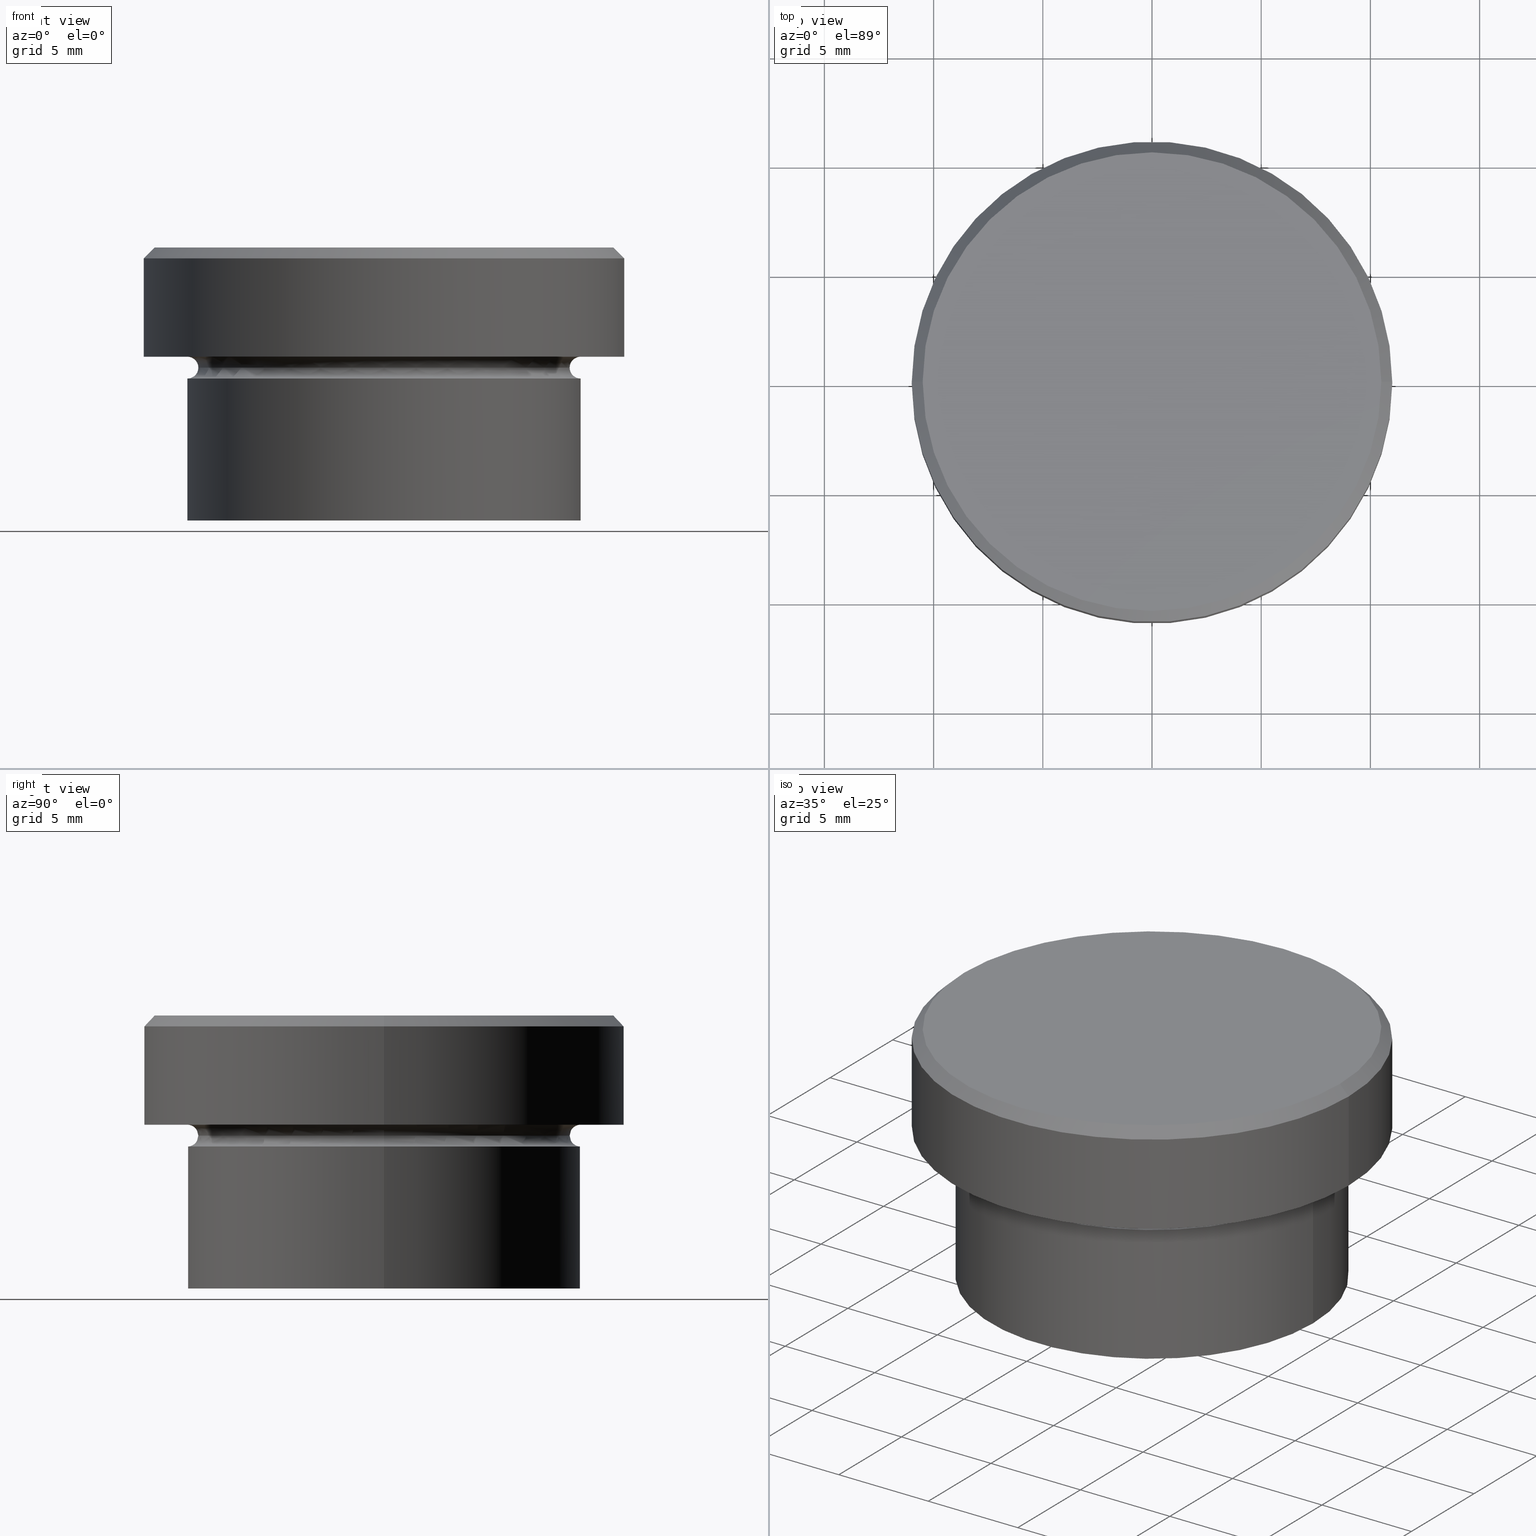
[diagram: canonical four-view strip — front | top / right | iso, engineering-drawing reading convention]
A machine part, canonical four-view strip (front | top / right | iso — engineering-drawing reading convention). The complete STEP part file that produces these views, byte-faithful:
ISO-10303-21;
HEADER;
FILE_DESCRIPTION (( 'STEP AP203' ),
    '1' );
FILE_NAME ('80bb.STEP',
    '2024-01-02T22:03:41',
    ( '' ),
    ( '' ),
    'SwSTEP 2.0',
    'SolidWorks 2019',
    '' );
FILE_SCHEMA (( 'CONFIG_CONTROL_DESIGN' ));
ENDSEC;

DATA;
#1 = PRODUCT ( '80bb', '80bb', '', ( #285 ) ) ;
#2 = AXIS2_PLACEMENT_3D ( 'NONE', #45, #10, #110 ) ;
#3 = UNCERTAINTY_MEASURE_WITH_UNIT (LENGTH_MEASURE( 1.000000000000000082E-05 ), #239, 'distance_accuracy_value', 'NONE');
#4 = DATE_AND_TIME ( #289, #28 ) ;
#5 = EDGE_CURVE ( 'NONE', #256, #281, #138, .T. ) ;
#6 = ORIENTED_EDGE ( 'NONE', *, *, #29, .F. ) ;
#7 = CARTESIAN_POINT ( 'NONE',  ( -10.50000000000000533, 0.000000000000000000, 0.000000000000000000 ) ) ;
#8 = DIRECTION ( 'NONE',  ( -1.000000000000000000, 0.000000000000000000, 0.000000000000000000 ) ) ;
#9 = EDGE_LOOP ( 'NONE', ( #50, #408, #142, #325 ) ) ;
#10 = DIRECTION ( 'NONE',  ( -0.000000000000000000, -1.000000000000000000, -0.000000000000000000 ) ) ;
#11 = AXIS2_PLACEMENT_3D ( 'NONE', #336, #331, #118 ) ;
#12 = APPROVAL_PERSON_ORGANIZATION ( #51, #301, #218 ) ;
#13 = CARTESIAN_POINT ( 'NONE',  ( 0.000000000000000000, 0.000000000000000000, -5.000000000000000000 ) ) ;
#14 = CARTESIAN_POINT ( 'NONE',  ( -9.000000000000000000, 1.102182119232617714E-15, -6.000000000000000000 ) ) ;
#15 = DIRECTION ( 'NONE',  ( 0.000000000000000000, 0.000000000000000000, -1.000000000000000000 ) ) ;
#16 = DIRECTION ( 'NONE',  ( 0.000000000000000000, -0.000000000000000000, 1.000000000000000000 ) ) ;
#17 = DIRECTION ( 'NONE',  ( -0.000000000000000000, -0.000000000000000000, 1.000000000000000000 ) ) ;
#18 = APPROVAL ( #97, 'NEUR�EN�' ) ;
#19 = CARTESIAN_POINT ( 'NONE',  ( -9.000000000000000000, 0.000000000000000000, -4.999999999999999112 ) ) ;
#20 = CARTESIAN_POINT ( 'NONE',  ( 0.000000000000000000, 0.000000000000000000, -0.4999999999999968914 ) ) ;
#21 = EDGE_CURVE ( 'NONE', #281, #256, #268, .T. ) ;
#22 = PERSON_AND_ORGANIZATION ( #394, #390 ) ;
#23 = ORIENTED_EDGE ( 'NONE', *, *, #358, .T. ) ;
#24 = DIRECTION ( 'NONE',  ( -1.224646799147353207E-16, 1.000000000000000000, 0.000000000000000000 ) ) ;
#25 = DATE_TIME_ROLE ( 'creation_date' ) ;
#26 = AXIS2_PLACEMENT_3D ( 'NONE', #237, #75, #79 ) ;
#27 = DIRECTION ( 'NONE',  ( -1.000000000000000000, -1.224646799147353454E-16, 0.000000000000000000 ) ) ;
#28 = LOCAL_TIME ( 23, 3, 41.00000000000000000, #322 ) ;
#29 = EDGE_CURVE ( 'NONE', #391, #395, #202, .T. ) ;
#30 = ORIENTED_EDGE ( 'NONE', *, *, #162, .F. ) ;
#31 = AXIS2_PLACEMENT_3D ( 'NONE', #262, #364, #203 ) ;
#32 = DIRECTION ( 'NONE',  ( 1.000000000000000000, 0.000000000000000000, 0.000000000000000000 ) ) ;
#33 = CARTESIAN_POINT ( 'NONE',  ( 0.000000000000000000, 0.000000000000000000, -6.000000000000000000 ) ) ;
#34 = APPROVAL_ROLE ( '' ) ;
#35 = DIRECTION ( 'NONE',  ( 1.000000000000000000, 0.000000000000000000, 0.000000000000000000 ) ) ;
#36 = FACE_OUTER_BOUND ( 'NONE', #94, .T. ) ;
#37 = AXIS2_PLACEMENT_3D ( 'NONE', #13, #141, #58 ) ;
#38 = DATE_TIME_ROLE ( 'classification_date' ) ;
#39 = LINE ( 'NONE', #201, #253 ) ;
#40 = ORIENTED_EDGE ( 'NONE', *, *, #128, .T. ) ;
#41 = ORIENTED_EDGE ( 'NONE', *, *, #338, .T. ) ;
#42 = PLANE ( 'NONE',  #158 ) ;
#43 = ADVANCED_FACE ( 'NONE', ( #149 ), #99, .F. ) ;
#44 = ORIENTED_EDGE ( 'NONE', *, *, #392, .F. ) ;
#45 = CARTESIAN_POINT ( 'NONE',  ( -9.000000000000000000, 0.000000000000000000, -5.500000000000000000 ) ) ;
#46 = VECTOR ( 'NONE', #297, 1000.000000000000000 ) ;
#47 = EDGE_LOOP ( 'NONE', ( #242, #307, #134, #124 ) ) ;
#48 = DIRECTION ( 'NONE',  ( 1.000000000000000000, 0.000000000000000000, 0.000000000000000000 ) ) ;
#49 = DIRECTION ( 'NONE',  ( -0.000000000000000000, -0.000000000000000000, 1.000000000000000000 ) ) ;
#50 = ORIENTED_EDGE ( 'NONE', *, *, #384, .F. ) ;
#51 = PERSON_AND_ORGANIZATION ( #394, #390 ) ;
#52 = LINE ( 'NONE', #179, #46 ) ;
#53 = CARTESIAN_POINT ( 'NONE',  ( 0.000000000000000000, 0.000000000000000000, -5.500000000000000000 ) ) ;
#54 = CALENDAR_DATE ( 2024, 2, 1 ) ;
#55 = CARTESIAN_POINT ( 'NONE',  ( 9.000000000000000000, 0.000000000000000000, -6.000000000000000000 ) ) ;
#56 = ADVANCED_FACE ( 'NONE', ( #243 ), #80, .F. ) ;
#57 = DIRECTION ( 'NONE',  ( 1.000000000000000000, 0.000000000000000000, 0.000000000000000000 ) ) ;
#58 = DIRECTION ( 'NONE',  ( -1.000000000000000000, 0.000000000000000000, 0.000000000000000000 ) ) ;
#59 = EDGE_LOOP ( 'NONE', ( #6, #40, #74, #183 ) ) ;
#60 = DIRECTION ( 'NONE',  ( -1.000000000000000000, 0.000000000000000000, 0.000000000000000000 ) ) ;
#61 = PERSON_AND_ORGANIZATION ( #394, #390 ) ;
#62 = AXIS2_PLACEMENT_3D ( 'NONE', #287, #255, #172 ) ;
#63 = ORIENTED_EDGE ( 'NONE', *, *, #222, .F. ) ;
#64 =( NAMED_UNIT ( * ) PLANE_ANGLE_UNIT ( ) SI_UNIT ( $, .RADIAN. ) );
#65 = CIRCLE ( 'NONE', #212, 11.00000000000000000 ) ;
#66 = DIRECTION ( 'NONE',  ( -0.000000000000000000, -0.000000000000000000, 1.000000000000000000 ) ) ;
#67 = ADVANCED_FACE ( 'NONE', ( #216 ), #382, .T. ) ;
#68 = DIRECTION ( 'NONE',  ( -0.000000000000000000, -0.000000000000000000, 1.000000000000000000 ) ) ;
#69 = CONICAL_SURFACE ( 'NONE', #180, 10.50000000000000533, 0.7853981633974447263 ) ;
#70 = PRODUCT_DEFINITION_FORMATION_WITH_SPECIFIED_SOURCE ( 'LIBOVOLN�', '', #1, .NOT_KNOWN. ) ;
#71 = DIRECTION ( 'NONE',  ( -1.000000000000000000, 0.000000000000000000, -0.000000000000000000 ) ) ;
#72 = CC_DESIGN_PERSON_AND_ORGANIZATION_ASSIGNMENT ( #209, #334, ( #1 ) ) ;
#73 = PERSON_AND_ORGANIZATION ( #394, #390 ) ;
#74 = ORIENTED_EDGE ( 'NONE', *, *, #162, .T. ) ;
#75 = DIRECTION ( 'NONE',  ( -0.000000000000000000, -0.000000000000000000, 1.000000000000000000 ) ) ;
#76 = CYLINDRICAL_SURFACE ( 'NONE', #90, 9.000000000000000000 ) ;
#77 = CARTESIAN_POINT ( 'NONE',  ( 9.000000000000000000, 0.000000000000000000, -12.50000000000000000 ) ) ;
#78 = EDGE_LOOP ( 'NONE', ( #227, #145 ) ) ;
#79 = DIRECTION ( 'NONE',  ( 1.000000000000000000, 0.000000000000000000, 0.000000000000000000 ) ) ;
#80 = TOROIDAL_SURFACE ( 'NONE', #192, 9.000000000000000000, 0.5000000000000000000 ) ;
#81 = DIRECTION ( 'NONE',  ( 1.224646799147353207E-16, 1.000000000000000000, 0.000000000000000000 ) ) ;
#82 = ORIENTED_EDGE ( 'NONE', *, *, #21, .F. ) ;
#83 = DIRECTION ( 'NONE',  ( 1.000000000000000000, 0.000000000000000000, 0.000000000000000000 ) ) ;
#84 = PERSON_AND_ORGANIZATION_ROLE ( 'creator' ) ;
#85 = ADVANCED_FACE ( 'NONE', ( #270 ), #69, .T. ) ;
#86 = DIRECTION ( 'NONE',  ( -0.000000000000000000, -0.000000000000000000, 1.000000000000000000 ) ) ;
#87 = CARTESIAN_POINT ( 'NONE',  ( -11.00000000000000000, 1.347111479062088405E-15, 0.000000000000000000 ) ) ;
#88 = DIRECTION ( 'NONE',  ( 1.000000000000000000, 0.000000000000000000, 0.000000000000000000 ) ) ;
#89 = ORIENTED_EDGE ( 'NONE', *, *, #308, .T. ) ;
#90 = AXIS2_PLACEMENT_3D ( 'NONE', #197, #369, #83 ) ;
#91 = DIRECTION ( 'NONE',  ( -0.000000000000000000, -0.000000000000000000, 1.000000000000000000 ) ) ;
#92 = PERSON_AND_ORGANIZATION ( #394, #390 ) ;
#93 = DIRECTION ( 'NONE',  ( -1.000000000000000000, 0.000000000000000000, 0.000000000000000000 ) ) ;
#94 = EDGE_LOOP ( 'NONE', ( #139, #111, #109, #393 ) ) ;
#95 = CIRCLE ( 'NONE', #26, 8.499999999999998224 ) ;
#96 = CC_DESIGN_PERSON_AND_ORGANIZATION_ASSIGNMENT ( #92, #84, ( #381 ) ) ;
#97 = APPROVAL_STATUS ( 'not_yet_approved' ) ;
#98 = APPROVAL_DATE_TIME ( #349, #319 ) ;
#99 = TOROIDAL_SURFACE ( 'NONE', #292, 9.000000000000000000, 0.5000000000000000000 ) ;
#100 = LOCAL_TIME ( 23, 3, 41.00000000000000000, #249 ) ;
#101 = PERSON_AND_ORGANIZATION_ROLE ( 'classification_officer' ) ;
#102 = EDGE_CURVE ( 'NONE', #281, #190, #389, .T. ) ;
#103 = CARTESIAN_POINT ( 'NONE',  ( 0.000000000000000000, 0.000000000000000000, -6.000000000000000000 ) ) ;
#104 = FACE_OUTER_BOUND ( 'NONE', #78, .T. ) ;
#105 = PRODUCT_RELATED_PRODUCT_CATEGORY ( 'detail', '', ( #1 ) ) ;
#106 = VERTEX_POINT ( 'NONE', #366 ) ;
#107 = CLOSED_SHELL ( 'NONE', ( #67, #279, #136, #154, #251, #187, #133, #195, #169, #284, #56, #43, #85 ) ) ;
#108 = AXIS2_PLACEMENT_3D ( 'NONE', #150, #271, #129 ) ;
#109 = ORIENTED_EDGE ( 'NONE', *, *, #178, .T. ) ;
#110 = DIRECTION ( 'NONE',  ( 0.000000000000000000, 0.000000000000000000, -1.000000000000000000 ) ) ;
#111 = ORIENTED_EDGE ( 'NONE', *, *, #21, .T. ) ;
#112 = FACE_OUTER_BOUND ( 'NONE', #401, .T. ) ;
#113 = ORIENTED_EDGE ( 'NONE', *, *, #128, .F. ) ;
#114 = EDGE_LOOP ( 'NONE', ( #44, #174, #137, #304 ) ) ;
#115 = FACE_OUTER_BOUND ( 'NONE', #205, .T. ) ;
#116 = AXIS2_PLACEMENT_3D ( 'NONE', #33, #66, #35 ) ;
#117 = DIRECTION ( 'NONE',  ( 1.000000000000000000, 0.000000000000000000, 0.000000000000000000 ) ) ;
#118 = DIRECTION ( 'NONE',  ( 1.000000000000000000, 0.000000000000000000, 0.000000000000000000 ) ) ;
#119 = DIRECTION ( 'NONE',  ( -0.000000000000000000, -0.000000000000000000, 1.000000000000000000 ) ) ;
#120 = DATE_AND_TIME ( #403, #100 ) ;
#121 = AXIS2_PLACEMENT_3D ( 'NONE', #228, #385, #8 ) ;
#122 = DIRECTION ( 'NONE',  ( 1.000000000000000000, 0.000000000000000000, 0.000000000000000000 ) ) ;
#123 = DIRECTION ( 'NONE',  ( -0.000000000000000000, -0.000000000000000000, 1.000000000000000000 ) ) ;
#124 = ORIENTED_EDGE ( 'NONE', *, *, #240, .F. ) ;
#125 = AXIS2_PLACEMENT_3D ( 'NONE', #303, #24, #27 ) ;
#126 = AXIS2_PLACEMENT_3D ( 'NONE', #376, #311, #32 ) ;
#127 = CARTESIAN_POINT ( 'NONE',  ( 9.000000000000000000, 1.102182119232617714E-15, -4.999999999999999112 ) ) ;
#128 = EDGE_CURVE ( 'NONE', #391, #378, #95, .T. ) ;
#129 = DIRECTION ( 'NONE',  ( 1.000000000000000000, 0.000000000000000000, 0.000000000000000000 ) ) ;
#130 = PRODUCT_DEFINITION_SHAPE ( 'NONE', 'NONE',  #381 ) ;
#131 = AXIS2_PLACEMENT_3D ( 'NONE', #402, #86, #265 ) ;
#132 = DIRECTION ( 'NONE',  ( -0.000000000000000000, -0.000000000000000000, 1.000000000000000000 ) ) ;
#133 = ADVANCED_FACE ( 'NONE', ( #291 ), #264, .T. ) ;
#134 = ORIENTED_EDGE ( 'NONE', *, *, #211, .T. ) ;
#135 = FACE_BOUND ( 'NONE', #344, .T. ) ;
#136 = ADVANCED_FACE ( 'NONE', ( #399 ), #194, .F. ) ;
#137 = ORIENTED_EDGE ( 'NONE', *, *, #211, .F. ) ;
#138 = CIRCLE ( 'NONE', #310, 9.000000000000000000 ) ;
#139 = ORIENTED_EDGE ( 'NONE', *, *, #102, .F. ) ;
#140 = LINE ( 'NONE', #7, #317 ) ;
#141 = DIRECTION ( 'NONE',  ( -0.000000000000000000, -0.000000000000000000, 1.000000000000000000 ) ) ;
#142 = ORIENTED_EDGE ( 'NONE', *, *, #312, .T. ) ;
#143 = CARTESIAN_POINT ( 'NONE',  ( -9.000000000000000000, 1.102182119232617714E-15, -12.50000000000000000 ) ) ;
#144 = MANIFOLD_SOLID_BREP ( 'Zkosen�1', #107 ) ;
#145 = ORIENTED_EDGE ( 'NONE', *, *, #308, .F. ) ;
#146 = FACE_OUTER_BOUND ( 'NONE', #294, .T. ) ;
#147 = AXIS2_PLACEMENT_3D ( 'NONE', #215, #269, #15 ) ;
#148 = SECURITY_CLASSIFICATION ( '', '', #380 ) ;
#149 = FACE_OUTER_BOUND ( 'NONE', #59, .T. ) ;
#150 = CARTESIAN_POINT ( 'NONE',  ( 0.000000000000000000, 0.000000000000000000, -5.500000000000000000 ) ) ;
#151 = EDGE_CURVE ( 'NONE', #207, #224, #140, .T. ) ;
#152 = CALENDAR_DATE ( 2024, 2, 1 ) ;
#153 = DIRECTION ( 'NONE',  ( -1.000000000000000000, 1.224646799147353454E-16, 0.000000000000000000 ) ) ;
#154 = ADVANCED_FACE ( 'NONE', ( #115 ), #76, .T. ) ;
#155 = APPROVAL_DATE_TIME ( #305, #18 ) ;
#156 = DIRECTION ( 'NONE',  ( -1.000000000000000000, 0.000000000000000000, 0.000000000000000000 ) ) ;
#157 = ORIENTED_EDGE ( 'NONE', *, *, #29, .T. ) ;
#158 = AXIS2_PLACEMENT_3D ( 'NONE', #396, #225, #71 ) ;
#159 = AXIS2_PLACEMENT_3D ( 'NONE', #332, #214, #117 ) ;
#160 = CARTESIAN_POINT ( 'NONE',  ( 10.50000000000000533, 1.285879139104721619E-15, 0.000000000000000000 ) ) ;
#161 = APPROVAL_STATUS ( 'not_yet_approved' ) ;
#162 = EDGE_CURVE ( 'NONE', #378, #387, #373, .T. ) ;
#163 = TOROIDAL_SURFACE ( 'NONE', #121, 9.000000000000000000, 0.5000000000000000000 ) ;
#164 = LOCAL_TIME ( 23, 3, 41.00000000000000000, #254 ) ;
#165 = PERSON_AND_ORGANIZATION ( #394, #390 ) ;
#166 = AXIS2_PLACEMENT_3D ( 'NONE', #273, #217, #60 ) ;
#167 = AXIS2_PLACEMENT_3D ( 'NONE', #346, #91, #122 ) ;
#168 = CARTESIAN_POINT ( 'NONE',  ( 0.000000000000000000, 0.000000000000000000, 0.000000000000000000 ) ) ;
#169 = ADVANCED_FACE ( 'NONE', ( #135, #104 ), #42, .T. ) ;
#170 = CYLINDRICAL_SURFACE ( 'NONE', #31, 9.000000000000000000 ) ;
#171 = PLANE ( 'NONE',  #247 ) ;
#172 = DIRECTION ( 'NONE',  ( 1.000000000000000000, 0.000000000000000000, 0.000000000000000000 ) ) ;
#173 = DIRECTION ( 'NONE',  ( 0.7071067811865451302, 8.659560562354904508E-17, -0.7071067811865500152 ) ) ;
#174 = ORIENTED_EDGE ( 'NONE', *, *, #352, .T. ) ;
#175 = CIRCLE ( 'NONE', #188, 9.000000000000000000 ) ;
#176 = VERTEX_POINT ( 'NONE', #320 ) ;
#177 = DIRECTION ( 'NONE',  ( 0.000000000000000000, 0.000000000000000000, -1.000000000000000000 ) ) ;
#178 = EDGE_CURVE ( 'NONE', #256, #233, #39, .T. ) ;
#179 = CARTESIAN_POINT ( 'NONE',  ( 11.00000000000000000, 0.000000000000000000, 0.000000000000000000 ) ) ;
#180 = AXIS2_PLACEMENT_3D ( 'NONE', #339, #184, #405 ) ;
#181 = LOCAL_TIME ( 23, 3, 41.00000000000000000, #223 ) ;
#182 = APPLICATION_CONTEXT ( 'configuration controlled 3d designs of mechanical parts and assemblies' ) ;
#183 = ORIENTED_EDGE ( 'NONE', *, *, #338, .F. ) ;
#184 = DIRECTION ( 'NONE',  ( 0.000000000000000000, 0.000000000000000000, -1.000000000000000000 ) ) ;
#185 = LINE ( 'NONE', #160, #400 ) ;
#186 = APPROVAL_ROLE ( '' ) ;
#187 = ADVANCED_FACE ( 'NONE', ( #112 ), #171, .T. ) ;
#188 = AXIS2_PLACEMENT_3D ( 'NONE', #103, #350, #313 ) ;
#189 = CC_DESIGN_SECURITY_CLASSIFICATION ( #148, ( #70 ) ) ;
#190 = VERTEX_POINT ( 'NONE', #14 ) ;
#191 = EDGE_CURVE ( 'NONE', #391, #233, #316, .T. ) ;
#192 = AXIS2_PLACEMENT_3D ( 'NONE', #275, #119, #374 ) ;
#193 = CIRCLE ( 'NONE', #108, 8.499999999999998224 ) ;
#194 = TOROIDAL_SURFACE ( 'NONE', #348, 9.000000000000000000, 0.5000000000000000000 ) ;
#195 = ADVANCED_FACE ( 'NONE', ( #146 ), #238, .T. ) ;
#196 = FACE_OUTER_BOUND ( 'NONE', #398, .T. ) ;
#197 = CARTESIAN_POINT ( 'NONE',  ( 0.000000000000000000, 0.000000000000000000, 0.000000000000000000 ) ) ;
#198 = APPLICATION_CONTEXT ( 'configuration controlled 3d designs of mechanical parts and assemblies' ) ;
#199 = APPROVAL_STATUS ( 'not_yet_approved' ) ;
#200 = ORIENTED_EDGE ( 'NONE', *, *, #384, .T. ) ;
#201 = CARTESIAN_POINT ( 'NONE',  ( 9.000000000000000000, 0.000000000000000000, 0.000000000000000000 ) ) ;
#202 = CIRCLE ( 'NONE', #125, 0.5000000000000004441 ) ;
#203 = DIRECTION ( 'NONE',  ( 1.000000000000000000, 0.000000000000000000, 0.000000000000000000 ) ) ;
#204 = APPROVAL_PERSON_ORGANIZATION ( #73, #319, #34 ) ;
#205 = EDGE_LOOP ( 'NONE', ( #246, #323, #259, #231 ) ) ;
#206 = DATE_AND_TIME ( #152, #181 ) ;
#207 = VERTEX_POINT ( 'NONE', #397 ) ;
#208 = EDGE_CURVE ( 'NONE', #378, #190, #404, .T. ) ;
#209 = PERSON_AND_ORGANIZATION ( #394, #390 ) ;
#210 = CARTESIAN_POINT ( 'NONE',  ( -11.00000000000000000, 1.347111479062088405E-15, -0.4999999999999968914 ) ) ;
#211 = EDGE_CURVE ( 'NONE', #224, #280, #244, .T. ) ;
#212 = AXIS2_PLACEMENT_3D ( 'NONE', #353, #68, #315 ) ;
#213 = LOCAL_TIME ( 23, 3, 41.00000000000000000, #340 ) ;
#214 = DIRECTION ( 'NONE',  ( -0.000000000000000000, -0.000000000000000000, 1.000000000000000000 ) ) ;
#215 = CARTESIAN_POINT ( 'NONE',  ( 9.000000000000000000, 0.000000000000000000, -5.500000000000000000 ) ) ;
#216 = FACE_OUTER_BOUND ( 'NONE', #114, .T. ) ;
#217 = DIRECTION ( 'NONE',  ( -0.000000000000000000, -0.000000000000000000, 1.000000000000000000 ) ) ;
#218 = APPROVAL_ROLE ( '' ) ;
#219 = DIRECTION ( 'NONE',  ( 0.000000000000000000, 0.000000000000000000, -1.000000000000000000 ) ) ;
#220 = VERTEX_POINT ( 'NONE', #266 ) ;
#221 = CIRCLE ( 'NONE', #37, 9.000000000000000000 ) ;
#222 = EDGE_CURVE ( 'NONE', #106, #224, #241, .T. ) ;
#223 = COORDINATED_UNIVERSAL_TIME_OFFSET ( 1, 0, .AHEAD. ) ;
#224 = VERTEX_POINT ( 'NONE', #210 ) ;
#225 = DIRECTION ( 'NONE',  ( 0.000000000000000000, 0.000000000000000000, -1.000000000000000000 ) ) ;
#226 = VECTOR ( 'NONE', #327, 1000.000000000000000 ) ;
#227 = ORIENTED_EDGE ( 'NONE', *, *, #386, .F. ) ;
#228 = CARTESIAN_POINT ( 'NONE',  ( 0.000000000000000000, 0.000000000000000000, -5.500000000000000000 ) ) ;
#229 = ORIENTED_EDGE ( 'NONE', *, *, #392, .T. ) ;
#230 = DIRECTION ( 'NONE',  ( 1.000000000000000000, 0.000000000000000000, 0.000000000000000000 ) ) ;
#231 = ORIENTED_EDGE ( 'NONE', *, *, #178, .F. ) ;
#232 = CARTESIAN_POINT ( 'NONE',  ( 0.000000000000000000, 9.000000000000000000, -12.50000000000000000 ) ) ;
#233 = VERTEX_POINT ( 'NONE', #55 ) ;
#234 = CARTESIAN_POINT ( 'NONE',  ( -9.000000000000000000, 1.102182119232617714E-15, 0.000000000000000000 ) ) ;
#235 = EDGE_LOOP ( 'NONE', ( #261, #388, #343, #360 ) ) ;
#236 = CIRCLE ( 'NONE', #116, 9.000000000000000000 ) ;
#237 = CARTESIAN_POINT ( 'NONE',  ( 0.000000000000000000, 0.000000000000000000, -5.500000000000000000 ) ) ;
#238 = CYLINDRICAL_SURFACE ( 'NONE', #131, 11.00000000000000000 ) ;
#239 =( LENGTH_UNIT ( ) NAMED_UNIT ( * ) SI_UNIT ( .MILLI., .METRE. ) );
#240 = EDGE_CURVE ( 'NONE', #176, #280, #52, .T. ) ;
#241 = LINE ( 'NONE', #87, #335 ) ;
#242 = ORIENTED_EDGE ( 'NONE', *, *, #386, .T. ) ;
#243 = FACE_OUTER_BOUND ( 'NONE', #263, .T. ) ;
#244 = CIRCLE ( 'NONE', #11, 11.00000000000000000 ) ;
#245 = EDGE_CURVE ( 'NONE', #280, #224, #328, .T. ) ;
#246 = ORIENTED_EDGE ( 'NONE', *, *, #5, .T. ) ;
#247 = AXIS2_PLACEMENT_3D ( 'NONE', #232, #177, #295 ) ;
#248 = CC_DESIGN_PERSON_AND_ORGANIZATION_ASSIGNMENT ( #165, #298, ( #70 ) ) ;
#249 = COORDINATED_UNIVERSAL_TIME_OFFSET ( 1, 0, .AHEAD. ) ;
#250 = ORIENTED_EDGE ( 'NONE', *, *, #321, .T. ) ;
#251 = ADVANCED_FACE ( 'NONE', ( #314 ), #363, .T. ) ;
#252 = SHAPE_DEFINITION_REPRESENTATION ( #130, #345 ) ;
#253 = VECTOR ( 'NONE', #260, 1000.000000000000000 ) ;
#254 = COORDINATED_UNIVERSAL_TIME_OFFSET ( 1, 0, .AHEAD. ) ;
#255 = DIRECTION ( 'NONE',  ( -0.000000000000000000, -0.000000000000000000, 1.000000000000000000 ) ) ;
#256 = VERTEX_POINT ( 'NONE', #77 ) ;
#257 = AXIS2_PLACEMENT_3D ( 'NONE', #168, #132, #288 ) ;
#258 = CARTESIAN_POINT ( 'NONE',  ( 11.00000000000000000, 0.000000000000000000, -0.4999999999999968914 ) ) ;
#259 = ORIENTED_EDGE ( 'NONE', *, *, #321, .F. ) ;
#260 = DIRECTION ( 'NONE',  ( -0.000000000000000000, -0.000000000000000000, 1.000000000000000000 ) ) ;
#261 = ORIENTED_EDGE ( 'NONE', *, *, #352, .F. ) ;
#262 = CARTESIAN_POINT ( 'NONE',  ( 0.000000000000000000, 0.000000000000000000, 0.000000000000000000 ) ) ;
#263 = EDGE_LOOP ( 'NONE', ( #300, #113, #359, #250 ) ) ;
#264 = PLANE ( 'NONE',  #306 ) ;
#265 = DIRECTION ( 'NONE',  ( 1.000000000000000000, 0.000000000000000000, 0.000000000000000000 ) ) ;
#266 = CARTESIAN_POINT ( 'NONE',  ( 10.50000000000000533, 1.316495309083405012E-15, 0.000000000000000000 ) ) ;
#267 = ORIENTED_EDGE ( 'NONE', *, *, #309, .T. ) ;
#268 = CIRCLE ( 'NONE', #276, 9.000000000000000000 ) ;
#269 = DIRECTION ( 'NONE',  ( 0.000000000000000000, -1.000000000000000000, 0.000000000000000000 ) ) ;
#270 = FACE_OUTER_BOUND ( 'NONE', #235, .T. ) ;
#271 = DIRECTION ( 'NONE',  ( -0.000000000000000000, -0.000000000000000000, 1.000000000000000000 ) ) ;
#272 = DIRECTION ( 'NONE',  ( 0.000000000000000000, 0.000000000000000000, -1.000000000000000000 ) ) ;
#273 = CARTESIAN_POINT ( 'NONE',  ( 0.000000000000000000, 0.000000000000000000, -5.000000000000000000 ) ) ;
#274 = APPLICATION_PROTOCOL_DEFINITION ( 'international standard', 'config_control_design', 1994, #198 ) ;
#275 = CARTESIAN_POINT ( 'NONE',  ( 0.000000000000000000, 0.000000000000000000, -5.500000000000000000 ) ) ;
#276 = AXIS2_PLACEMENT_3D ( 'NONE', #299, #123, #88 ) ;
#277 =( GEOMETRIC_REPRESENTATION_CONTEXT ( 3 ) GLOBAL_UNCERTAINTY_ASSIGNED_CONTEXT ( ( #3 ) ) GLOBAL_UNIT_ASSIGNED_CONTEXT ( ( #239, #64, #371 ) ) REPRESENTATION_CONTEXT ( 'NONE', 'WORKASPACE' ) );
#278 = PERSON_AND_ORGANIZATION ( #394, #390 ) ;
#279 = ADVANCED_FACE ( 'NONE', ( #196 ), #163, .F. ) ;
#280 = VERTEX_POINT ( 'NONE', #258 ) ;
#281 = VERTEX_POINT ( 'NONE', #143 ) ;
#282 = CC_DESIGN_PERSON_AND_ORGANIZATION_ASSIGNMENT ( #22, #101, ( #148 ) ) ;
#283 = CC_DESIGN_APPROVAL ( #301, ( #381 ) ) ;
#284 = ADVANCED_FACE ( 'NONE', ( #36 ), #170, .T. ) ;
#285 = MECHANICAL_CONTEXT ( 'NONE', #182, 'mechanical' ) ;
#286 = CIRCLE ( 'NONE', #257, 10.50000000000000533 ) ;
#287 = CARTESIAN_POINT ( 'NONE',  ( 0.000000000000000000, 0.000000000000000000, 0.000000000000000000 ) ) ;
#288 = DIRECTION ( 'NONE',  ( 1.000000000000000000, 0.000000000000000000, 0.000000000000000000 ) ) ;
#289 = CALENDAR_DATE ( 2024, 2, 1 ) ;
#290 = DIRECTION ( 'NONE',  ( -0.7071067811865451302, 0.000000000000000000, -0.7071067811865500152 ) ) ;
#291 = FACE_OUTER_BOUND ( 'NONE', #409, .T. ) ;
#292 = AXIS2_PLACEMENT_3D ( 'NONE', #53, #219, #156 ) ;
#293 = CC_DESIGN_APPROVAL ( #319, ( #148 ) ) ;
#294 = EDGE_LOOP ( 'NONE', ( #63, #89, #326, #365 ) ) ;
#295 = DIRECTION ( 'NONE',  ( -1.000000000000000000, 0.000000000000000000, -0.000000000000000000 ) ) ;
#296 = CARTESIAN_POINT ( 'NONE',  ( 0.000000000000000000, 0.000000000000000000, -12.50000000000000000 ) ) ;
#297 = DIRECTION ( 'NONE',  ( -0.000000000000000000, -0.000000000000000000, 1.000000000000000000 ) ) ;
#298 = PERSON_AND_ORGANIZATION_ROLE ( 'design_supplier' ) ;
#299 = CARTESIAN_POINT ( 'NONE',  ( 0.000000000000000000, 0.000000000000000000, -12.50000000000000000 ) ) ;
#300 = ORIENTED_EDGE ( 'NONE', *, *, #208, .F. ) ;
#301 = APPROVAL ( #161, 'NEUR�EN�' ) ;
#302 = APPLICATION_PROTOCOL_DEFINITION ( 'international standard', 'config_control_design', 1994, #182 ) ;
#303 = CARTESIAN_POINT ( 'NONE',  ( 9.000000000000000000, 1.102182119232617714E-15, -5.500000000000000000 ) ) ;
#304 = ORIENTED_EDGE ( 'NONE', *, *, #151, .F. ) ;
#305 = DATE_AND_TIME ( #54, #213 ) ;
#306 = AXIS2_PLACEMENT_3D ( 'NONE', #356, #16, #48 ) ;
#307 = ORIENTED_EDGE ( 'NONE', *, *, #222, .T. ) ;
#308 = EDGE_CURVE ( 'NONE', #106, #176, #65, .T. ) ;
#309 = EDGE_CURVE ( 'NONE', #207, #220, #286, .T. ) ;
#310 = AXIS2_PLACEMENT_3D ( 'NONE', #296, #17, #57 ) ;
#311 = DIRECTION ( 'NONE',  ( 0.000000000000000000, 0.000000000000000000, 1.000000000000000000 ) ) ;
#312 = EDGE_CURVE ( 'NONE', #190, #233, #175, .T. ) ;
#313 = DIRECTION ( 'NONE',  ( 1.000000000000000000, 0.000000000000000000, 0.000000000000000000 ) ) ;
#314 = FACE_OUTER_BOUND ( 'NONE', #47, .T. ) ;
#315 = DIRECTION ( 'NONE',  ( 1.000000000000000000, 0.000000000000000000, 0.000000000000000000 ) ) ;
#316 = CIRCLE ( 'NONE', #147, 0.5000000000000004441 ) ;
#317 = VECTOR ( 'NONE', #290, 1000.000000000000114 ) ;
#318 = APPROVAL_PERSON_ORGANIZATION ( #278, #18, #186 ) ;
#319 = APPROVAL ( #199, 'NEUR�EN�' ) ;
#320 = CARTESIAN_POINT ( 'NONE',  ( 11.00000000000000000, 0.000000000000000000, -5.000000000000000000 ) ) ;
#321 = EDGE_CURVE ( 'NONE', #233, #190, #236, .T. ) ;
#322 = COORDINATED_UNIVERSAL_TIME_OFFSET ( 1, 0, .AHEAD. ) ;
#323 = ORIENTED_EDGE ( 'NONE', *, *, #102, .T. ) ;
#324 = DIRECTION ( 'NONE',  ( 1.000000000000000000, 0.000000000000000000, 0.000000000000000000 ) ) ;
#325 = ORIENTED_EDGE ( 'NONE', *, *, #191, .F. ) ;
#326 = ORIENTED_EDGE ( 'NONE', *, *, #240, .T. ) ;
#327 = DIRECTION ( 'NONE',  ( -0.000000000000000000, -0.000000000000000000, 1.000000000000000000 ) ) ;
#328 = CIRCLE ( 'NONE', #379, 11.00000000000000000 ) ;
#329 = CIRCLE ( 'NONE', #167, 11.00000000000000000 ) ;
#330 = CARTESIAN_POINT ( 'NONE',  ( 0.000000000000000000, 0.000000000000000000, -5.500000000000000000 ) ) ;
#331 = DIRECTION ( 'NONE',  ( 0.000000000000000000, 0.000000000000000000, -1.000000000000000000 ) ) ;
#332 = CARTESIAN_POINT ( 'NONE',  ( 0.000000000000000000, 0.000000000000000000, 0.000000000000000000 ) ) ;
#333 = CARTESIAN_POINT ( 'NONE',  ( -9.000000000000000000, 1.102182119232617714E-15, -5.500000000000000000 ) ) ;
#334 = PERSON_AND_ORGANIZATION_ROLE ( 'design_owner' ) ;
#335 = VECTOR ( 'NONE', #49, 1000.000000000000000 ) ;
#336 = CARTESIAN_POINT ( 'NONE',  ( 0.000000000000000000, 0.000000000000000000, -0.4999999999999968914 ) ) ;
#337 = CC_DESIGN_APPROVAL ( #18, ( #70 ) ) ;
#338 = EDGE_CURVE ( 'NONE', #395, #387, #342, .T. ) ;
#339 = CARTESIAN_POINT ( 'NONE',  ( 0.000000000000000000, 0.000000000000000000, 0.000000000000000000 ) ) ;
#340 = COORDINATED_UNIVERSAL_TIME_OFFSET ( 1, 0, .AHEAD. ) ;
#341 = DIRECTION ( 'NONE',  ( 0.000000000000000000, 0.000000000000000000, -1.000000000000000000 ) ) ;
#342 = CIRCLE ( 'NONE', #166, 9.000000000000000000 ) ;
#343 = ORIENTED_EDGE ( 'NONE', *, *, #151, .T. ) ;
#344 = EDGE_LOOP ( 'NONE', ( #23, #41 ) ) ;
#345 = ADVANCED_BREP_SHAPE_REPRESENTATION ( '80bb', ( #144, #126 ), #277 ) ;
#346 = CARTESIAN_POINT ( 'NONE',  ( 0.000000000000000000, 0.000000000000000000, -5.000000000000000000 ) ) ;
#347 = CARTESIAN_POINT ( 'NONE',  ( -8.499999999999998224, 1.071565949253933927E-15, -5.500000000000000000 ) ) ;
#348 = AXIS2_PLACEMENT_3D ( 'NONE', #330, #362, #324 ) ;
#349 = DATE_AND_TIME ( #355, #164 ) ;
#350 = DIRECTION ( 'NONE',  ( -0.000000000000000000, -0.000000000000000000, 1.000000000000000000 ) ) ;
#351 = DESIGN_CONTEXT ( 'detailed design', #198, 'design' ) ;
#352 = EDGE_CURVE ( 'NONE', #220, #280, #185, .T. ) ;
#353 = CARTESIAN_POINT ( 'NONE',  ( 0.000000000000000000, 0.000000000000000000, -5.000000000000000000 ) ) ;
#354 = CC_DESIGN_PERSON_AND_ORGANIZATION_ASSIGNMENT ( #61, #406, ( #70 ) ) ;
#355 = CALENDAR_DATE ( 2024, 2, 1 ) ;
#356 = CARTESIAN_POINT ( 'NONE',  ( 0.000000000000000000, 0.000000000000000000, 0.000000000000000000 ) ) ;
#357 = AXIS2_PLACEMENT_3D ( 'NONE', #333, #81, #153 ) ;
#358 = EDGE_CURVE ( 'NONE', #387, #395, #221, .T. ) ;
#359 = ORIENTED_EDGE ( 'NONE', *, *, #191, .T. ) ;
#360 = ORIENTED_EDGE ( 'NONE', *, *, #245, .F. ) ;
#361 = ORIENTED_EDGE ( 'NONE', *, *, #5, .F. ) ;
#362 = DIRECTION ( 'NONE',  ( -0.000000000000000000, -0.000000000000000000, 1.000000000000000000 ) ) ;
#363 = CYLINDRICAL_SURFACE ( 'NONE', #62, 11.00000000000000000 ) ;
#364 = DIRECTION ( 'NONE',  ( -0.000000000000000000, -0.000000000000000000, 1.000000000000000000 ) ) ;
#365 = ORIENTED_EDGE ( 'NONE', *, *, #245, .T. ) ;
#366 = CARTESIAN_POINT ( 'NONE',  ( -11.00000000000000000, 1.347111479062088405E-15, -5.000000000000000000 ) ) ;
#367 = CC_DESIGN_DATE_AND_TIME_ASSIGNMENT ( #206, #25, ( #381 ) ) ;
#368 = AXIS2_PLACEMENT_3D ( 'NONE', #377, #341, #93 ) ;
#369 = DIRECTION ( 'NONE',  ( -0.000000000000000000, -0.000000000000000000, 1.000000000000000000 ) ) ;
#370 = APPROVAL_DATE_TIME ( #120, #301 ) ;
#371 =( NAMED_UNIT ( * ) SI_UNIT ( $, .STERADIAN. ) SOLID_ANGLE_UNIT ( ) );
#372 = CARTESIAN_POINT ( 'NONE',  ( 8.499999999999998224, 0.000000000000000000, -5.500000000000000000 ) ) ;
#373 = CIRCLE ( 'NONE', #2, 0.5000000000000004441 ) ;
#374 = DIRECTION ( 'NONE',  ( 1.000000000000000000, 0.000000000000000000, 0.000000000000000000 ) ) ;
#375 = ORIENTED_EDGE ( 'NONE', *, *, #358, .F. ) ;
#376 = CARTESIAN_POINT ( 'NONE',  ( 0.000000000000000000, 0.000000000000000000, 0.000000000000000000 ) ) ;
#377 = CARTESIAN_POINT ( 'NONE',  ( 0.000000000000000000, 0.000000000000000000, 0.000000000000000000 ) ) ;
#378 = VERTEX_POINT ( 'NONE', #347 ) ;
#379 = AXIS2_PLACEMENT_3D ( 'NONE', #20, #272, #230 ) ;
#380 = SECURITY_CLASSIFICATION_LEVEL ( 'unclassified' ) ;
#381 = PRODUCT_DEFINITION ( 'NEZN�M�', '', #70, #351 ) ;
#382 = CONICAL_SURFACE ( 'NONE', #368, 10.50000000000000533, 0.7853981633974447263 ) ;
#383 = CIRCLE ( 'NONE', #159, 10.50000000000000533 ) ;
#384 = EDGE_CURVE ( 'NONE', #378, #391, #193, .T. ) ;
#385 = DIRECTION ( 'NONE',  ( 0.000000000000000000, 0.000000000000000000, -1.000000000000000000 ) ) ;
#386 = EDGE_CURVE ( 'NONE', #176, #106, #329, .T. ) ;
#387 = VERTEX_POINT ( 'NONE', #19 ) ;
#388 = ORIENTED_EDGE ( 'NONE', *, *, #309, .F. ) ;
#389 = LINE ( 'NONE', #234, #226 ) ;
#390 = ORGANIZATION ( 'NEUR�EN�', 'NEUR�EN�', '' ) ;
#391 = VERTEX_POINT ( 'NONE', #372 ) ;
#392 = EDGE_CURVE ( 'NONE', #220, #207, #383, .T. ) ;
#393 = ORIENTED_EDGE ( 'NONE', *, *, #312, .F. ) ;
#394 = PERSON ( 'NEUR�EN�', 'NEUR�EN�', 'NEUR�EN�', ('NEUR�EN�'), ('NEUR�EN�'), ('NEUR�EN�') ) ;
#395 = VERTEX_POINT ( 'NONE', #127 ) ;
#396 = CARTESIAN_POINT ( 'NONE',  ( 0.000000000000000000, 11.00000000000000000, -5.000000000000000000 ) ) ;
#397 = CARTESIAN_POINT ( 'NONE',  ( -10.50000000000000533, 0.000000000000000000, 0.000000000000000000 ) ) ;
#398 = EDGE_LOOP ( 'NONE', ( #200, #157, #375, #30 ) ) ;
#399 = FACE_OUTER_BOUND ( 'NONE', #9, .T. ) ;
#400 = VECTOR ( 'NONE', #173, 1000.000000000000114 ) ;
#401 = EDGE_LOOP ( 'NONE', ( #361, #82 ) ) ;
#402 = CARTESIAN_POINT ( 'NONE',  ( 0.000000000000000000, 0.000000000000000000, 0.000000000000000000 ) ) ;
#403 = CALENDAR_DATE ( 2024, 2, 1 ) ;
#404 = CIRCLE ( 'NONE', #357, 0.5000000000000004441 ) ;
#405 = DIRECTION ( 'NONE',  ( -1.000000000000000000, 0.000000000000000000, 0.000000000000000000 ) ) ;
#406 = PERSON_AND_ORGANIZATION_ROLE ( 'creator' ) ;
#407 = CC_DESIGN_DATE_AND_TIME_ASSIGNMENT ( #4, #38, ( #148 ) ) ;
#408 = ORIENTED_EDGE ( 'NONE', *, *, #208, .T. ) ;
#409 = EDGE_LOOP ( 'NONE', ( #267, #229 ) ) ;
ENDSEC;
END-ISO-10303-21;
